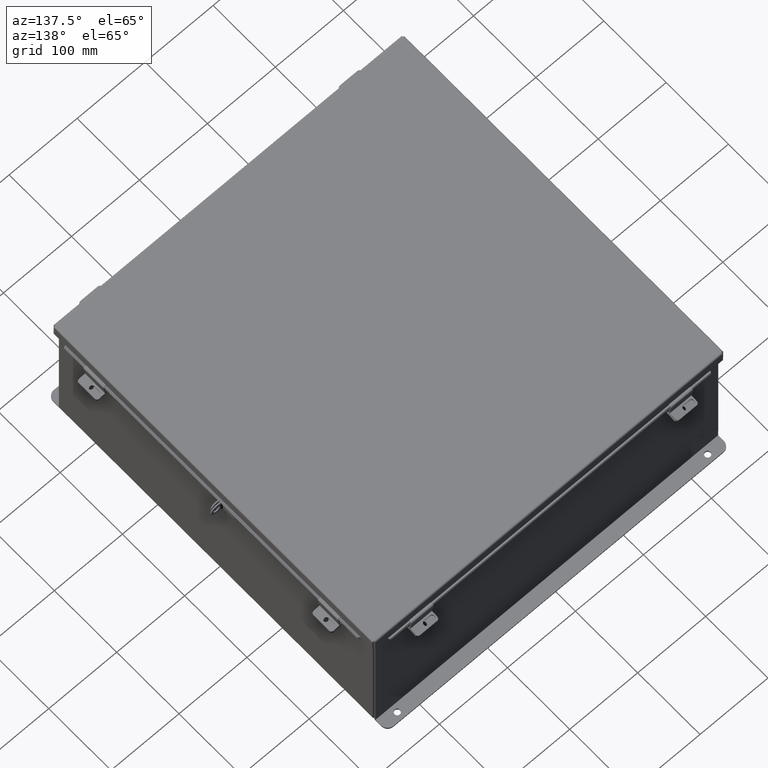
[diagram: clean part render]
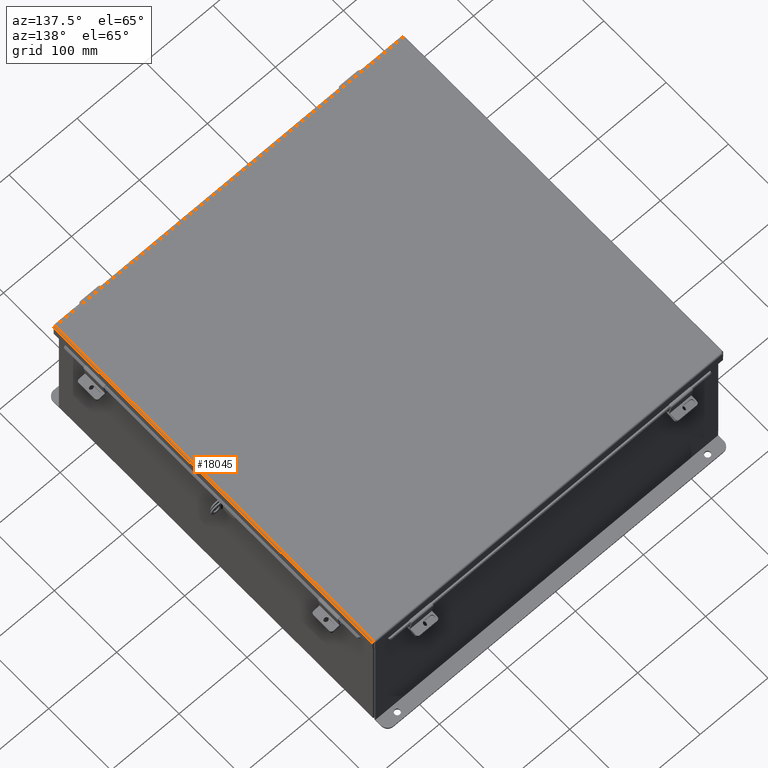
[diagram: same view with one face highlighted and labeled with its STEP entity id]
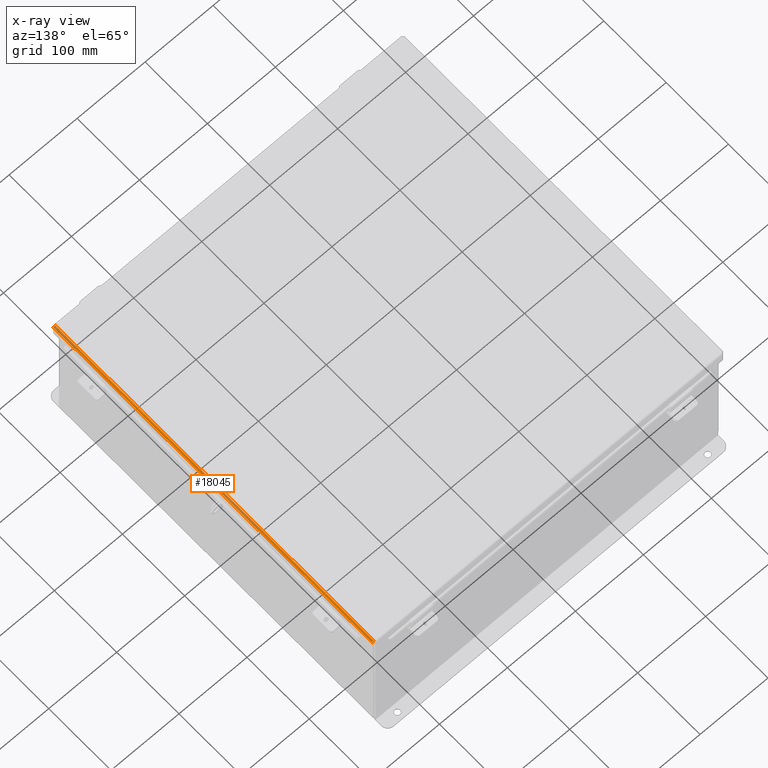
[diagram: x-ray of the same camera — body ghosted, the highlighted face saturated]
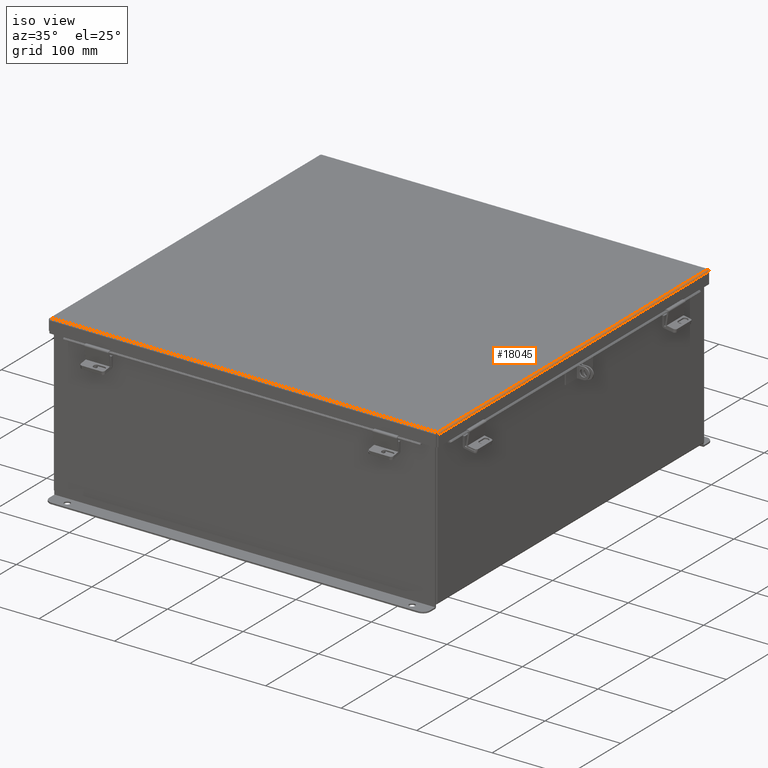
[diagram: same view with one face highlighted and labeled with its STEP entity id]
A machine part, auxiliary view. The second image highlights one B-rep face of the part: STEP entity #18045.
The next image is the same camera in x-ray: the body ghosted, the highlighted face saturated — about 0% of this face is hidden behind the body in this view.
A second angle (iso view) of the same face is appended — the face is thin or edge-on in the first view.
In plain terms, the highlighted cylindrical surface (edge-blend (fillet) strip) has radius 2.2276 mm, axis along (-0, -1, -0).
Its self-contained STEP definition (entity closure, byte-faithful):
#492 = CARTESIAN_POINT ( 'NONE',  ( -10.06855000000002900, -10.06855000000001400, -0.07470000000000015500 ) ) ;
#612 = CARTESIAN_POINT ( 'NONE',  ( -10.15625000000003000, 10.15624999999998400, 0.01300000000000010700 ) ) ;
#919 = B_SPLINE_CURVE_WITH_KNOTS ( 'NONE', 3,
 ( #3246, #4922, #20597, #10109, #22298, #11849, #1586, #13627, #3318, #15391 ),
 .UNSPECIFIED., .F., .F.,
 ( 4, 2, 2, 2, 4 ),
 ( 0.0000000000000000000, 0.2500000000000000000, 0.5000000000000000000, 0.7500000000000000000, 1.000000000000000000 ),
 .UNSPECIFIED. ) ;
#1019 = ORIENTED_EDGE ( 'NONE', *, *, #20496, .F. ) ;
#1586 = CARTESIAN_POINT ( 'NONE',  ( -10.11271738457855600, -10.07052631072939300, -0.06363106625866871100 ) ) ;
#3246 = CARTESIAN_POINT ( 'NONE',  ( -10.15625000000003000, -10.07447893218814800, 0.01300000000000010700 ) ) ;
#3318 = CARTESIAN_POINT ( 'NONE',  ( -10.08002990315502200, -10.06904407768236000, -0.07470000000000032200 ) ) ;
#4033 = VECTOR ( 'NONE', #4050, 39.37007874015748100 ) ;
#4050 = DIRECTION ( 'NONE',  ( 3.166671605124525800E-030, 1.000000000000000000, 1.853823127269377700E-029 ) ) ;
#4398 = CARTESIAN_POINT ( 'NONE',  ( -10.11271738457855400, 10.07052631072936300, -0.06363106625866869800 ) ) ;
#4430 = DIRECTION ( 'NONE',  ( -1.000000000000000000, 0.0000000000000000000, -3.577373637655407700E-015 ) ) ;
#4741 = EDGE_LOOP ( 'NONE', ( #1019, #7947, #15132, #15375 ) ) ;
#4749 = VERTEX_POINT ( 'NONE', #492 ) ;
#4922 = CARTESIAN_POINT ( 'NONE',  ( -10.15625000000002700, -10.07398485450580600, 0.001520096845007062900 ) ) ;
#5976 = CYLINDRICAL_SURFACE ( 'NONE', #18369, 0.08770000000000026400 ) ;
#6018 = CARTESIAN_POINT ( 'NONE',  ( -10.15625000000003000, 10.07447893218811800, 0.01300000000000010700 ) ) ;
#6094 = CARTESIAN_POINT ( 'NONE',  ( -10.13868078207834800, 10.07200854377639700, -0.04089574734180034100 ) ) ;
#7825 = CARTESIAN_POINT ( 'NONE',  ( -10.15396740374384200, 10.07349077682343200, -0.009955289458309117200 ) ) ;
#7947 = ORIENTED_EDGE ( 'NONE', *, *, #20189, .F. ) ;
#9580 = CARTESIAN_POINT ( 'NONE',  ( -10.15625000000003000, 10.07447893218811800, 0.01300000000000010700 ) ) ;
#10109 = CARTESIAN_POINT ( 'NONE',  ( -10.14518106625869500, -10.07250262145876700, -0.03116738457852814100 ) ) ;
#10337 = B_SPLINE_CURVE_WITH_KNOTS ( 'NONE', 3,
 ( #16435, #12890, #14724, #4398, #16509, #6094, #18243, #7825, #20034, #9580 ),
 .UNSPECIFIED., .F., .F.,
 ( 4, 2, 2, 2, 4 ),
 ( 0.0000000000000000000, 0.2500000000000000000, 0.5000000000000000000, 0.7500000000000000000, 1.000000000000000000 ),
 .UNSPECIFIED. ) ;
#10629 = VERTEX_POINT ( 'NONE', #6018 ) ;
#11536 = EDGE_CURVE ( 'NONE', #21303, #10629, #10337, .T. ) ;
#11849 = CARTESIAN_POINT ( 'NONE',  ( -10.12244574734182500, -10.07102038841173900, -0.05713078207832069500 ) ) ;
#12614 = CARTESIAN_POINT ( 'NONE',  ( -10.06855000000002900, -10.07447893218814800, -0.07470000000000015500 ) ) ;
#12890 = CARTESIAN_POINT ( 'NONE',  ( -10.08002990315502200, 10.06904407768232600, -0.07470000000000029400 ) ) ;
#12990 = DIRECTION ( 'NONE',  ( -3.166671605124525800E-030, -1.000000000000000000, -1.853823127269377700E-029 ) ) ;
#13627 = CARTESIAN_POINT ( 'NONE',  ( -10.09150528945833600, -10.06953815536470000, -0.07241740374381157300 ) ) ;
#14177 = CARTESIAN_POINT ( 'NONE',  ( -10.06855000000002900, 10.06854999999998400, -0.07469999999999907300 ) ) ;
#14315 = VECTOR ( 'NONE', #19772, 39.37007874015748100 ) ;
#14724 = CARTESIAN_POINT ( 'NONE',  ( -10.09150528945833800, 10.06953815536467200, -0.07241740374381158700 ) ) ;
#14754 = CARTESIAN_POINT ( 'NONE',  ( -10.06855000000002900, -10.07447893218814800, 0.01300000000000010700 ) ) ;
#15132 = ORIENTED_EDGE ( 'NONE', *, *, #19777, .T. ) ;
#15202 = FACE_OUTER_BOUND ( 'NONE', #4741, .T. ) ;
#15375 = ORIENTED_EDGE ( 'NONE', *, *, #11536, .F. ) ;
#15391 = CARTESIAN_POINT ( 'NONE',  ( -10.06855000000002900, -10.06855000000001400, -0.07470000000000015500 ) ) ;
#15536 = CARTESIAN_POINT ( 'NONE',  ( -10.15625000000003000, -10.07447893218814800, 0.01300000000000010700 ) ) ;
#16435 = CARTESIAN_POINT ( 'NONE',  ( -10.06855000000002900, 10.06854999999998400, -0.07469999999999907300 ) ) ;
#16509 = CARTESIAN_POINT ( 'NONE',  ( -10.12244574734182700, 10.07102038841170700, -0.05713078207832070900 ) ) ;
#17828 = LINE ( 'NONE', #12614, #4033 ) ;
#18045 = ADVANCED_FACE ( 'NONE', ( #15202 ), #5976, .T. ) ;
#18243 = CARTESIAN_POINT ( 'NONE',  ( -10.14518106625870100, 10.07250262145873900, -0.03116738457852815500 ) ) ;
#18369 = AXIS2_PLACEMENT_3D ( 'NONE', #14754, #12990, #4430 ) ;
#18970 = LINE ( 'NONE', #612, #14315 ) ;
#19772 = DIRECTION ( 'NONE',  ( 3.166671605124525800E-030, 1.000000000000000000, 1.853823127269377700E-029 ) ) ;
#19777 = EDGE_CURVE ( 'NONE', #20289, #10629, #18970, .T. ) ;
#20034 = CARTESIAN_POINT ( 'NONE',  ( -10.15625000000003000, 10.07398485450577200, 0.001520096845007063500 ) ) ;
#20189 = EDGE_CURVE ( 'NONE', #20289, #4749, #919, .T. ) ;
#20289 = VERTEX_POINT ( 'NONE', #15536 ) ;
#20496 = EDGE_CURVE ( 'NONE', #4749, #21303, #17828, .T. ) ;
#20597 = CARTESIAN_POINT ( 'NONE',  ( -10.15396740374384200, -10.07349077682346200, -0.009955289458309115500 ) ) ;
#21303 = VERTEX_POINT ( 'NONE', #14177 ) ;
#22298 = CARTESIAN_POINT ( 'NONE',  ( -10.13868078207834800, -10.07200854377642500, -0.04089574734180033400 ) ) ;